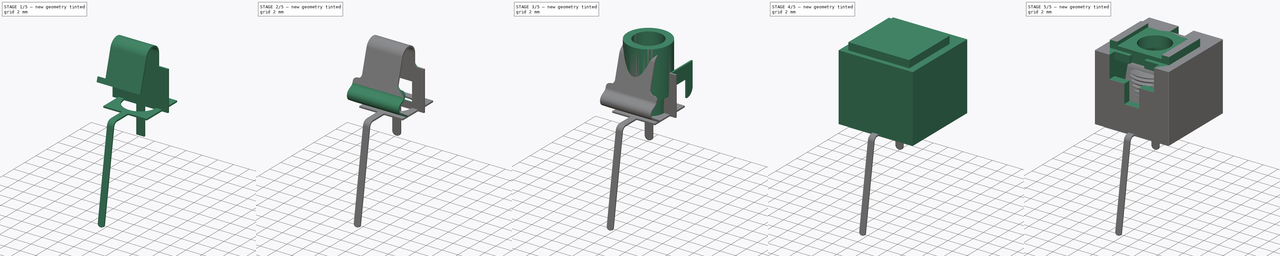
[diagram: build sequence overview — one tinted view per stage of 5, left to right]
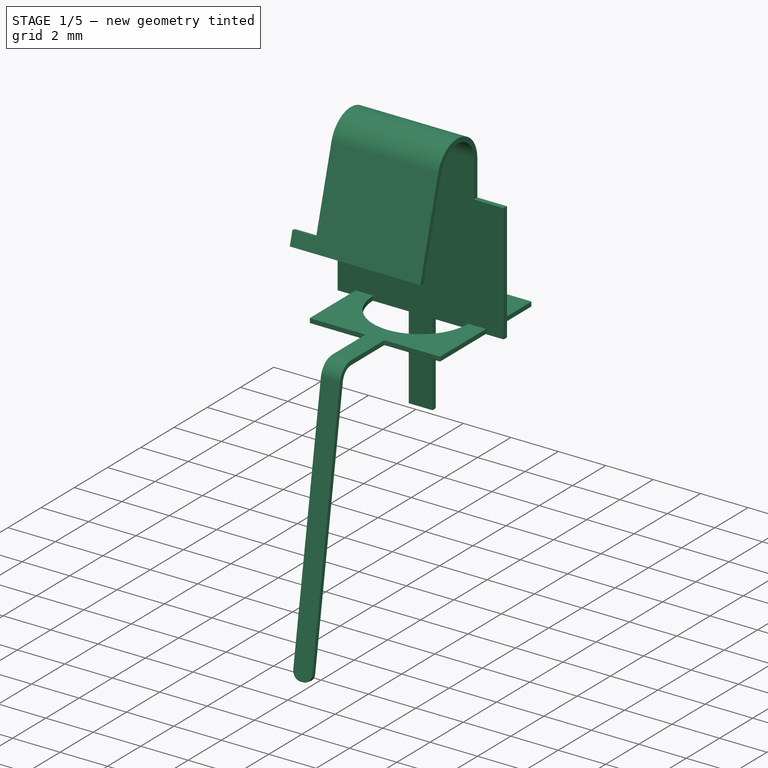
[diagram: stage 1 of 5 — iso view after this stage's code; geometry added in this stage tinted green]
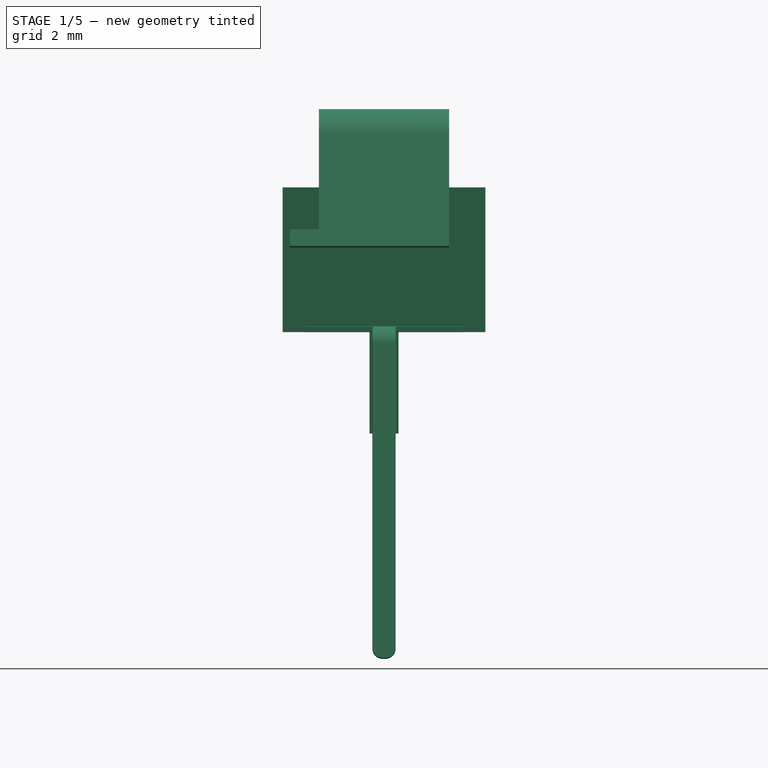
[diagram: stage 1 of 5 — front view after this stage's code; geometry added in this stage tinted green]
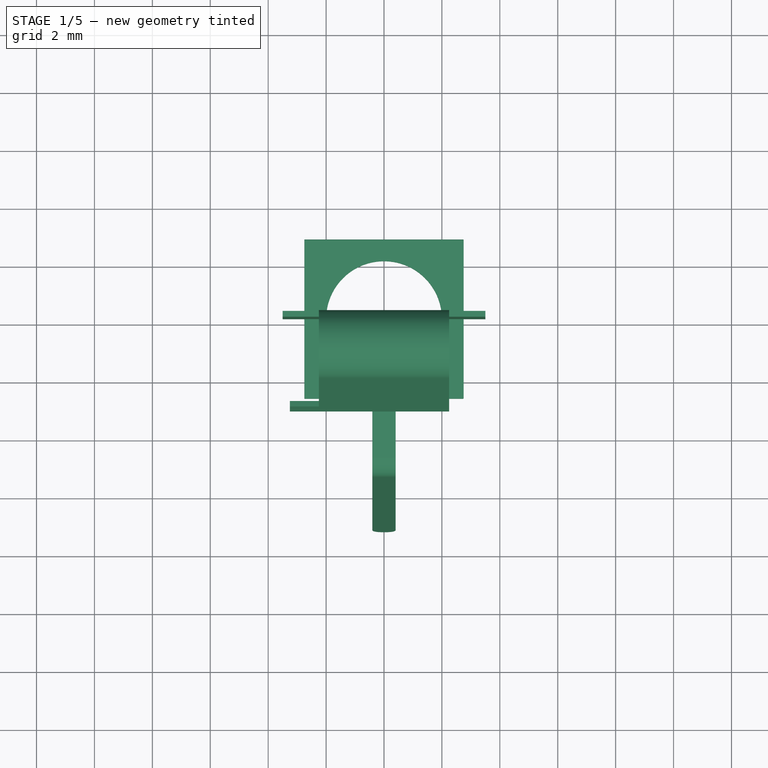
[diagram: stage 1 of 5 — top view after this stage's code; geometry added in this stage tinted green]
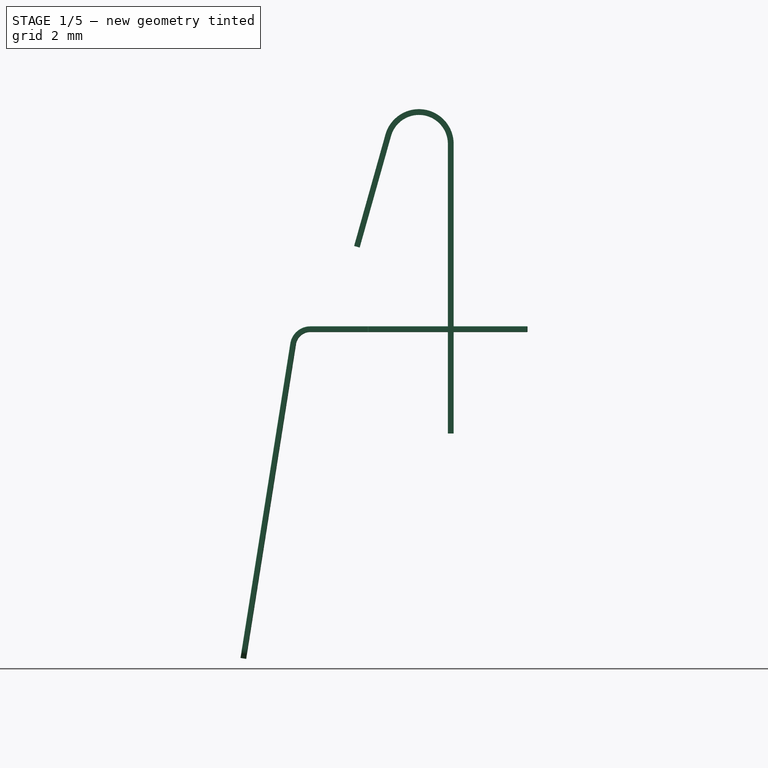
[diagram: stage 1 of 5 — right view after this stage's code; geometry added in this stage tinted green]
FCSTD DOCUMENT  (FreeCAD 0.19R24366 (Git))
Label: WPQ-P419GR
License: All rights reserved
LicenseURL: http://en.wikipedia.org/wiki/All_rights_reserved
objects: Sketcher::SketchObject×19, PartDesign::Pocket×8, PartDesign::Fillet×7, PartDesign::FeaturePython×7, Part::FeaturePython×6, PartDesign::Chamfer×6, PartDesign::Body×5, PartDesign::Pad×3, Image::ImagePlane×2, PartDesign::FeatureBase×1, PartDesign::Revolution×1, Spreadsheet::Sheet×1, PartDesign::AdditiveHelix×1, PartDesign::Groove×1, App::Part×1
note: 92 computed .brp shape members not serialized (recipe doc carries the construction recipe); baked Part::Feature solids carry a one-line shape summary decoded from their .brp

FEATURE [Sketcher::SketchObject] Sketch008
  FullyConstrained = true
  Placement = pos=(0,0,0) rot=(1,0,0;1.5708rad)
  sketch-geometry (12):
    g0: LineSegment StartX=-2.25 StartY=6.5 StartZ=0 EndX=-2.25 EndY=5 EndZ=0
    g1: LineSegment StartX=-2.25 StartY=5 StartZ=0 EndX=-3.5 EndY=5 EndZ=0
    g2: LineSegment StartX=-3.5 StartY=5 StartZ=0 EndX=-3.5 EndY=0 EndZ=0
    g3: LineSegment StartX=-3.5 StartY=0 StartZ=0 EndX=-0.5 EndY=0 EndZ=0
    g4: LineSegment StartX=-0.5 StartY=0 StartZ=0 EndX=-0.5 EndY=-3.5 EndZ=0
    g5: LineSegment StartX=-0.5 StartY=-3.5 StartZ=0 EndX=0.5 EndY=-3.5 EndZ=0
    g6: LineSegment StartX=0.5 StartY=-3.5 StartZ=0 EndX=0.5 EndY=0 EndZ=0
    g7: LineSegment StartX=0.5 StartY=0 StartZ=0 EndX=3.5 EndY=0 EndZ=0
    g8: LineSegment StartX=3.5 StartY=0 StartZ=0 EndX=3.5 EndY=5 EndZ=0
    g9: LineSegment StartX=3.5 StartY=5 StartZ=0 EndX=2.25 EndY=5 EndZ=0
    g10: LineSegment StartX=2.25 StartY=5 StartZ=0 EndX=2.25 EndY=6.5 EndZ=0
    g11: LineSegment StartX=-2.25 StartY=6.5 StartZ=0 EndX=2.25 EndY=6.5 EndZ=0
  constraints (35):
    c: Vertical(g0)
    c: Coincident(g1,g0)
    c: Horizontal(g1)
    c: Coincident(g2,g1)
    c: Vertical(g2)
    c: Coincident(g3,g2)
    c: Coincident(g4,g3)
    c: Vertical(g4)
    c: Coincident(g5,g4)
    c: Horizontal(g5)
    c: Coincident(g6,g5)
    c: Coincident(g7,g6)
    c: Horizontal(g7)
    c: Coincident(g8,g7)
    c: Coincident(g9,g8)
    c: Coincident(g10,g9)
    c: Vertical(g6)
    c: Vertical(g8)
    c: Vertical(g10)
    c: Horizontal(g3)
    c: Distance(g5) = 1
    c: Equal(g6,g4)
    c: Equal(g8,g2)
    c: Equal(g10,g0)
    c: Symmetric(g6,g3,g-1)
    c: Equal(g7,g3)
    c: Horizontal(g9)
    c: Distance(g4) = 3.5
    c: Distance(g2) = 5
    c: Distance(g0,g9) = 4.5
    c: Distance(g0) = 1.5
    c: Equal(g9,g1)
    c: Coincident(g11,g0)
    c: Coincident(g11,g10)
    c: Distance(g2,g7) = 7
FEATURE [Part::FeaturePython] BaseBend  # WARN: FeaturePython — macro-defined, semantics opaque (R4)
  BendSide = 0
  BendSketch = -> Sketch008
  MidPlane = false
  Reverse = false
  length = 100
  radius = 1
  thickness = 0.2
FEATURE [Part::FeaturePython] Bend  # WARN: FeaturePython — macro-defined, semantics opaque (R4)
  AutoMiter = true
  BendType = 0
  LengthList = [4]
  ReliefFactor = 0.7
  UseReliefFactor = false
  angle = 164.3
  baseObject = -> BaseBend [Edge35]
  bendAList = [164.3]
  extend1 = 0
  extend2 = 0
  gap1 = 0
  gap2 = 0
  invert = true
  kfactor = 0.5
  length = 4
  maxExtendDist = 5
  minGap = 0.1
  minReliefGap = 1
  miterangle1 = 0
  miterangle2 = 0
  offset = 0
  radius = 1
  reliefType = 0
  reliefd = 1
  reliefw = 0.8
  sketchflip = false
  sketchinvert = false
  unfold = false
  expr: length = 7mm - 3mm
FEATURE [Part::FeaturePython] Extend  # WARN: FeaturePython — macro-defined, semantics opaque (R4)
  Offset = 20
  Refine = true
  UseSubstraction = false
  baseObject = -> Bend [Face1]
  gap1 = 3.4
  gap2 = 0
  length = 1
FEATURE [PartDesign::Body] Body001  label="Pin 3"
  BaseFeature = -> Bend002
  Group = -> [BaseFeature,Sketch009,Pocket006,Fillet001,Fillet002,Fillet003,Chamfer005]
  Origin = -> Origin002
  Placement = pos=(0,4.8,0) rot=(0,0,1;0rad)
  Tip = -> Chamfer005
FEATURE [PartDesign::FeaturePython] BaseBend003  # WARN: FeaturePython — macro-defined, semantics opaque (R4)
  BendSide = 0
  BendSketch = -> Sketch011
  MidPlane = false
  Reverse = false
  length = 100
  radius = 1
  thickness = 0.2
FEATURE [PartDesign::FeaturePython] Extend004  # WARN: FeaturePython — macro-defined, semantics opaque (R4)
  BaseFeature = -> BaseBend003
  Offset = 0.02
  Refine = true
  UseSubstraction = false
  baseObject = -> BaseBend003 [Edge9]
  gap1 = 2.35
  gap2 = 2.35
  length = 2
FEATURE [PartDesign::FeaturePython] Bend006  # WARN: FeaturePython — macro-defined, semantics opaque (R4)
  AutoMiter = true
  BaseFeature = -> Extend004
  BendType = 0
  LengthList = [11]
  ReliefFactor = 0.7
  UseReliefFactor = false
  angle = 81
  baseObject = -> Extend004 [Edge24]
  bendAList = [81]
  extend1 = 0
  extend2 = 0
  gap1 = 0
  gap2 = 0
  invert = false
  kfactor = 0.5
  length = 11
  maxExtendDist = 5
  minGap = 0.1
  minReliefGap = 1
  miterangle1 = 0
  miterangle2 = 0
  offset = 0
  radius = 0.5
  reliefType = 0
  reliefd = 1
  reliefw = 0.8
  sketchflip = false
  sketchinvert = false
  unfold = false
FEATURE [Sketcher::SketchObject] Sketch020  label="PCB Footprint Bottom"
  AttachmentOffset = pos=(0,0,-1.6) rot=(0,0,1;0rad)
  FullyConstrained = true
  MapMode = 5
  Placement = pos=(0,0,-1.6) rot=(0,0,1;0rad)
  Support = -> [XY_Plane001]
  sketch-geometry (4):
    g0: Circle CenterX=0 CenterY=0 CenterZ=0 NormalX=0 NormalY=0 NormalZ=1 AngleXU=0 Radius=1.8
    g1: Circle CenterX=0 CenterY=4.92 CenterZ=0 NormalX=0 NormalY=0 NormalZ=1 AngleXU=0 Radius=0.75
    g2: Circle CenterX=0 CenterY=-3.38 CenterZ=0 NormalX=0 NormalY=0 NormalZ=1 AngleXU=0 Radius=0.75
    g3: Circle CenterX=0 CenterY=-6.48 CenterZ=0 NormalX=0 NormalY=0 NormalZ=1 AngleXU=0 Radius=0.75
  constraints (11):
    c: Coincident(g0,g-1)
    c: Diameter(g0) = 3.6
    c: PointOnObject(g1,g-2)
    c: PointOnObject(g2,g-2)
    c: PointOnObject(g3,g-2)
    c: Diameter(g1) = 1.5
    c: Diameter(g2) = 1.5
    c: Diameter(g3) = 1.5
    c: DistanceY(g3,g2) = 3.1
    c: DistanceY(g2,g0) = 3.38
    c: DistanceY(g0,g1) = 4.92
FEATURE [PartDesign::Body] Body
  Group = -> [Sketch,Pad,Sketch001,Pad001,Sketch002,Pocket,Sketch003,Pocket001,Sketch004,Pocket002,Sketch005,Pocket003,Sketch006,Pocket004,Sketch007,Pocket005,Fillet,Chamfer001,Sketch014,Sketch020]
  Origin = -> Origin001
  Tip = -> Chamfer001
FEATURE [PartDesign::Fillet] Fillet007
  Base = -> Bend006 [Edge2,Edge8]
  BaseFeature = -> Bend006
  Radius = 0.35
  SupportTransform = false
FEATURE [PartDesign::Chamfer] Chamfer006
  Angle = 45
  Base = -> Fillet007 [Edge1,Edge4,Edge8,Edge9,Edge5,Edge18,Edge16,Edge7,Edge11,Edge13,Edge12,Edge19,Edge41,Edge32,Edge28,Edge27,Edge39,Edge34,Edge26,Edge35,Edge44,Edge38,Edge47,Edge37,Edge42,Edge43,Edge36,Edge48,Edge17,Edge24,Edge40,Edge33,Edge45,Edge31,Edge46,Edge30]
  BaseFeature = -> Fillet007
  ChamferType = 0
  FlipDirection = false
  Size = 0.01
  Size2 = 1
  SupportTransform = false
FEATURE [PartDesign::Body] Body003  label="Pin 1"
  Group = -> [Sketch011,BaseBend003,Extend004,Bend006,Fillet007,Chamfer006]
  Origin = -> Origin004
  Placement = pos=(0,0,7.8) rot=(0,0,1;0rad)
  Tip = -> Chamfer006
FEATURE [App::Part] Part
  Group = -> [Body,Body001,Body002,Body003,Body004]
  Origin = -> Origin
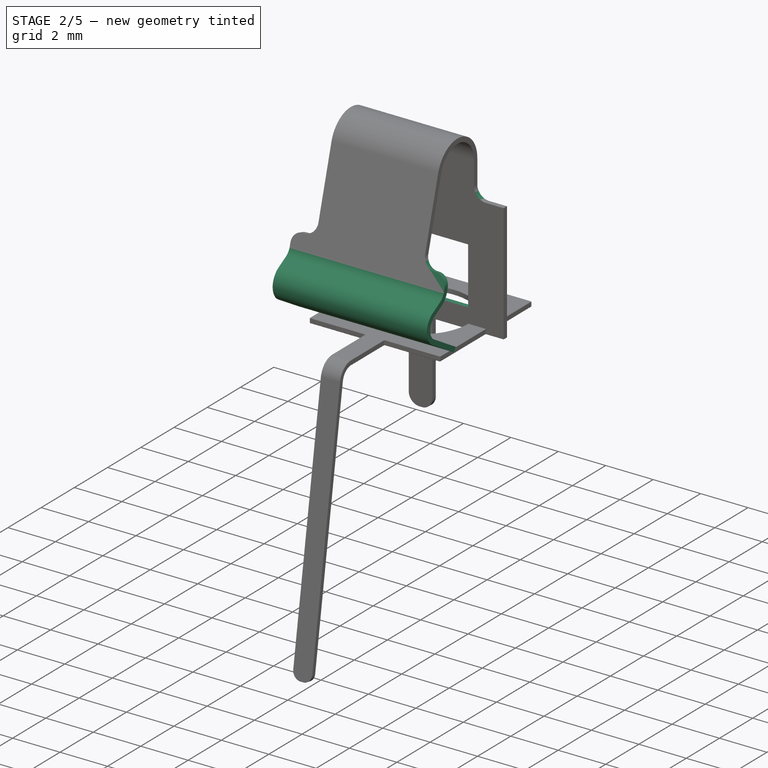
[diagram: stage 2 of 5 — iso view after this stage's code; geometry added in this stage tinted green]
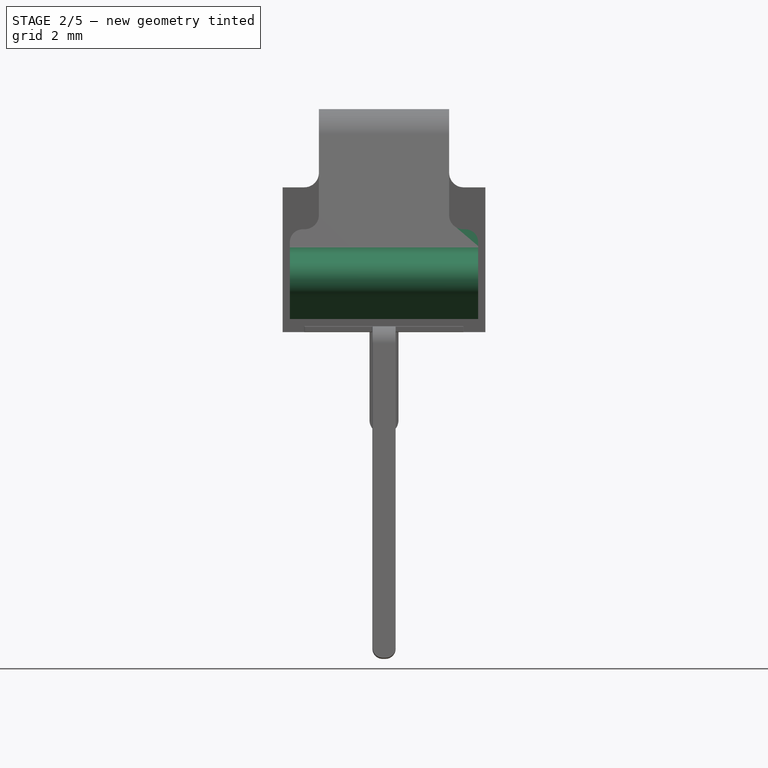
[diagram: stage 2 of 5 — front view after this stage's code; geometry added in this stage tinted green]
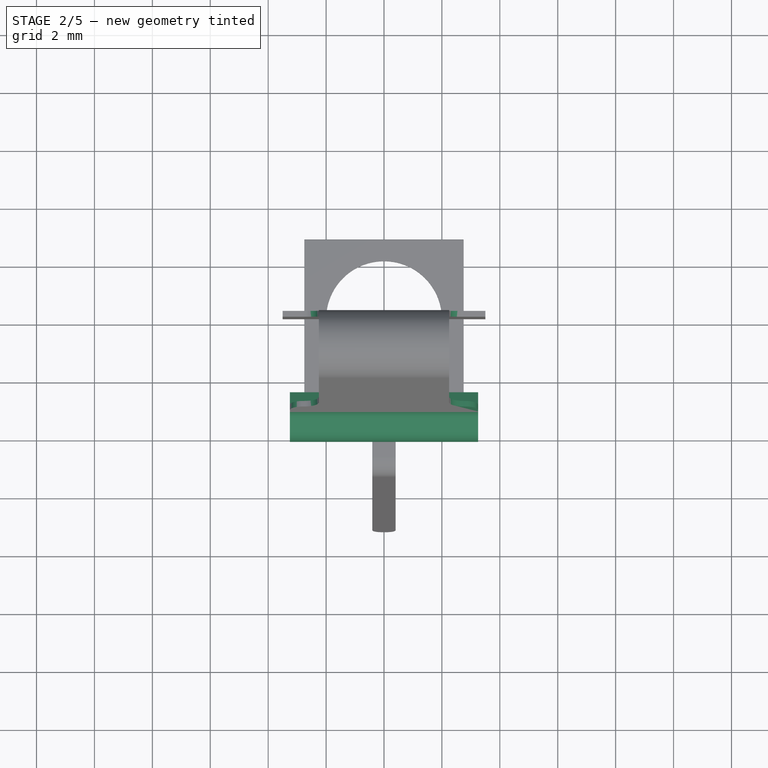
[diagram: stage 2 of 5 — top view after this stage's code; geometry added in this stage tinted green]
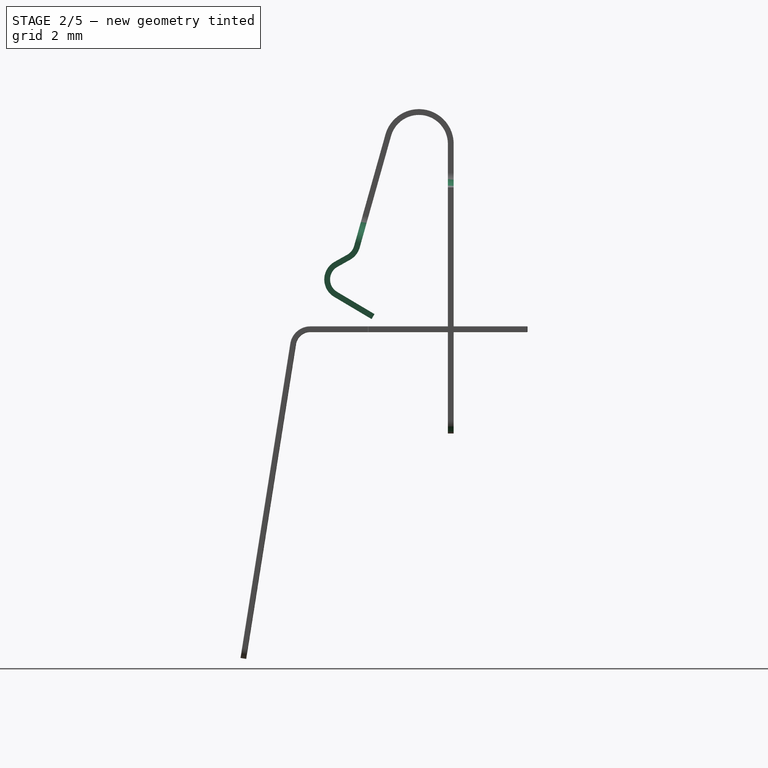
[diagram: stage 2 of 5 — right view after this stage's code; geometry added in this stage tinted green]
FEATURE [Part::FeaturePython] Extend001  # WARN: FeaturePython — macro-defined, semantics opaque (R4)
  Offset = 0.02
  Refine = true
  UseSubstraction = false
  baseObject = -> Extend [Face14]
  gap1 = 0
  gap2 = 3.4
  length = 1
FEATURE [Part::FeaturePython] Bend001  # WARN: FeaturePython — macro-defined, semantics opaque (R4)
  AutoMiter = true
  BendType = 0
  LengthList = [0.5]
  ReliefFactor = 0.7
  UseReliefFactor = false
  angle = 45
  baseObject = -> Extend001 [Edge32]
  bendAList = [45]
  extend1 = 0
  extend2 = 0
  gap1 = 0
  gap2 = 0
  invert = false
  kfactor = 0.5
  length = 0.5
  maxExtendDist = 5
  minGap = 0.1
  minReliefGap = 1
  miterangle1 = 0
  miterangle2 = 0
  offset = 0
  radius = 0.5
  reliefType = 0
  reliefd = 1
  reliefw = 0.8
  sketchflip = false
  sketchinvert = false
  unfold = false
FEATURE [Part::FeaturePython] Bend002  # WARN: FeaturePython — macro-defined, semantics opaque (R4)
  AutoMiter = true
  BendType = 0
  LengthList = [1.5]
  ReliefFactor = 0.7
  UseReliefFactor = false
  angle = 120
  baseObject = -> Bend001 [Edge9]
  bendAList = [120]
  extend1 = 0
  extend2 = 0
  gap1 = 0
  gap2 = 0
  invert = true
  kfactor = 0.5
  length = 1.5
  maxExtendDist = 5
  minGap = 0.1
  minReliefGap = 1
  miterangle1 = 0
  miterangle2 = 0
  offset = 0
  radius = 0.5
  reliefType = 0
  reliefd = 1
  reliefw = 0.8
  sketchflip = false
  sketchinvert = false
  unfold = false
FEATURE [PartDesign::FeatureBase] BaseFeature
  BaseFeature = -> Bend002
FEATURE [Sketcher::SketchObject] Sketch009
  FullyConstrained = true
  MapMode = 5
  Placement = pos=(0,0,0) rot=(1,0,0;1.5708rad)
  sketch-geometry (5):
    g0: LineSegment StartX=-2 StartY=3.22 StartZ=0 EndX=2 EndY=3.22 EndZ=0
    g1: LineSegment StartX=2 StartY=3.22 StartZ=0 EndX=2 EndY=0.82 EndZ=0
    g2: LineSegment StartX=2 StartY=0.82 StartZ=0 EndX=-2 EndY=0.82 EndZ=0
    g3: LineSegment StartX=-2 StartY=0.82 StartZ=0 EndX=-2 EndY=3.22 EndZ=0
    g4: GeomPoint X=0 Y=3.22 Z=0
  constraints (13):
    c: Coincident(g0,g1)
    c: Coincident(g1,g2)
    c: Coincident(g2,g3)
    c: Coincident(g3,g0)
    c: Horizontal(g0)
    c: Horizontal(g2)
    c: Vertical(g1)
    c: Vertical(g3)
    c: DistanceY(g1,g1) = 2.4
    c: DistanceX(g0,g0) = 4
    c: Vertical(g4,g-1)
    c: Symmetric(g0,g0,g4)
    c: Distance(g-1,g2) = 0.82
FEATURE [PartDesign::Pocket] Pocket006
  BaseFeature = -> BaseFeature
  Length = 0
  Length2 = 100
  Profile = -> Sketch009
  Type = 3
  UpToFace = -> BaseFeature [Face31]
FEATURE [PartDesign::Fillet] Fillet001
  Base = -> Pocket006 [Edge95,Edge58,Edge96,Edge52]
  BaseFeature = -> Pocket006
  Radius = 0.5
  SupportTransform = false
FEATURE [PartDesign::Fillet] Fillet002
  Base = -> Fillet001 [Edge83,Edge87]
  BaseFeature = -> Fillet001
  Radius = 0.45
  SupportTransform = false
FEATURE [PartDesign::Fillet] Fillet003
  Base = -> Fillet002 [Edge93,Edge84]
  BaseFeature = -> Fillet002
  Radius = 0.45
  SupportTransform = false
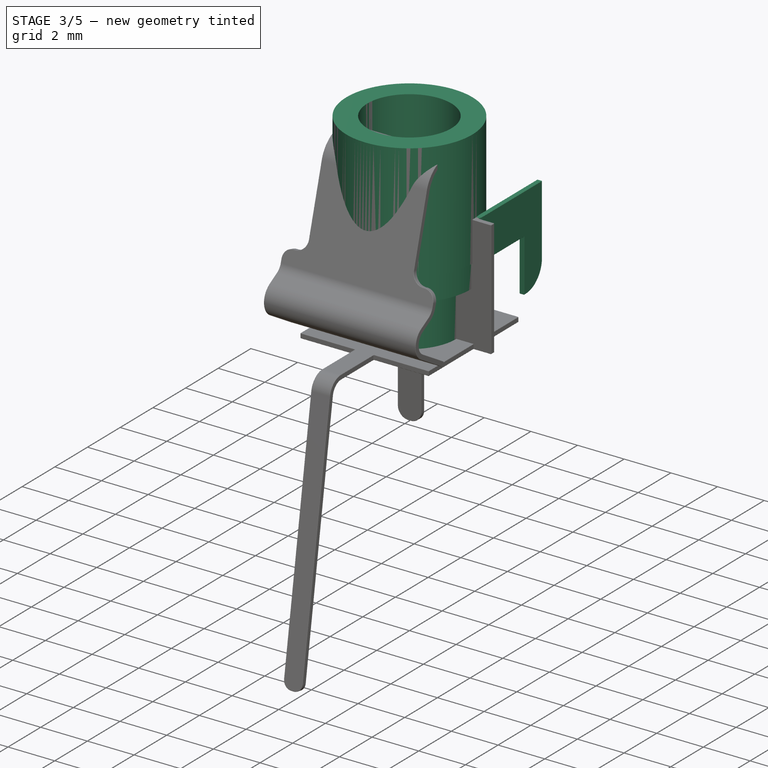
[diagram: stage 3 of 5 — iso view after this stage's code; geometry added in this stage tinted green]
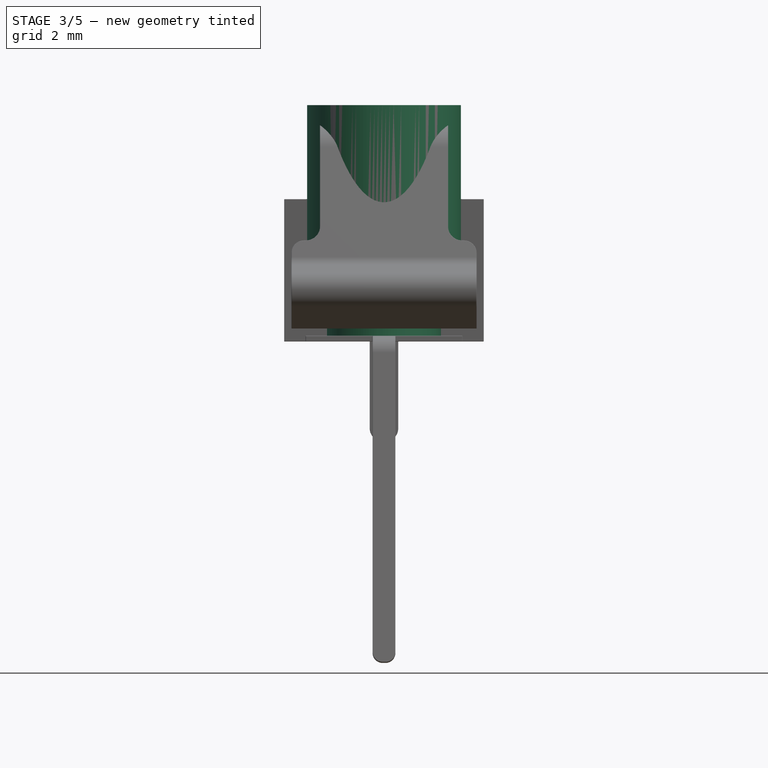
[diagram: stage 3 of 5 — front view after this stage's code; geometry added in this stage tinted green]
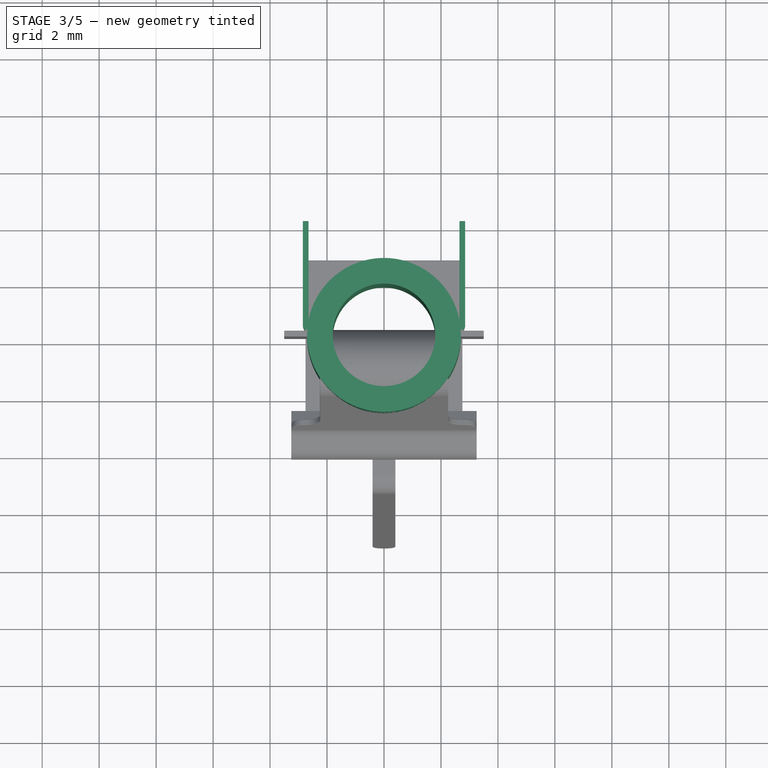
[diagram: stage 3 of 5 — top view after this stage's code; geometry added in this stage tinted green]
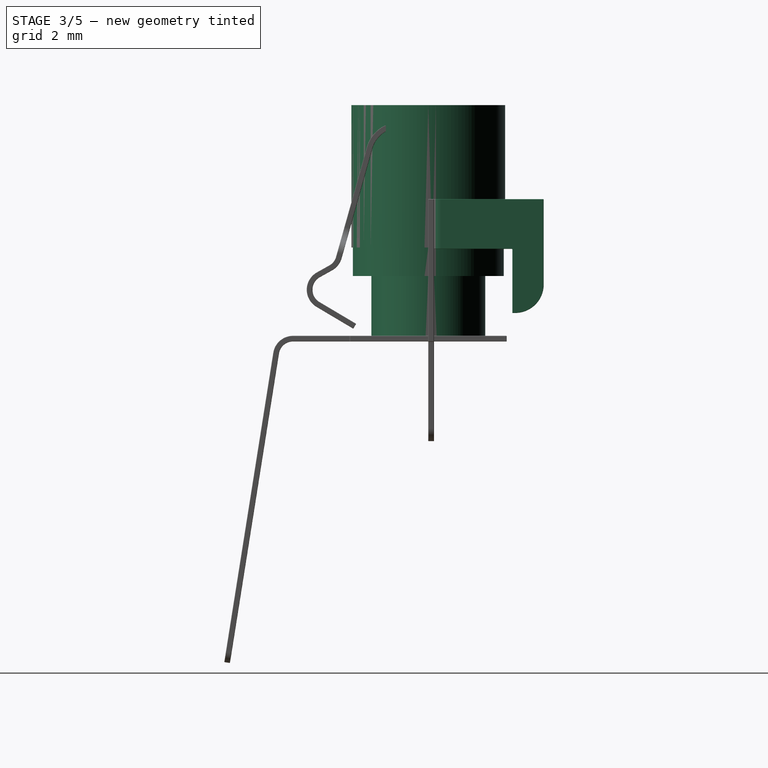
[diagram: stage 3 of 5 — right view after this stage's code; geometry added in this stage tinted green]
FEATURE [Sketcher::SketchObject] Sketch010
  FullyConstrained = true
  MapMode = 5
  Placement = pos=(0,0,0) rot=(1,0,0;1.5708rad)
  Support = -> [XZ_Plane003]
  sketch-geometry (18):
    g0: LineSegment StartX=-1.4 StartY=3.4 StartZ=0 EndX=1.4 EndY=3.4 EndZ=0
    g1: LineSegment StartX=1.4 StartY=3.4 StartZ=0 EndX=1.4 EndY=0.9 EndZ=0
    g2: LineSegment StartX=1.4 StartY=0.9 StartZ=0 EndX=-1.4 EndY=0.9 EndZ=0
    g3: LineSegment StartX=-1.4 StartY=0.9 StartZ=0 EndX=-1.4 EndY=3.4 EndZ=0
    g4: GeomPoint X=0 Y=0.9 Z=0
    g5: LineSegment StartX=-3.5 StartY=0 StartZ=0 EndX=-0.5 EndY=0 EndZ=0
    g6: LineSegment StartX=-0.5 StartY=0 StartZ=0 EndX=-0.5 EndY=-3.5 EndZ=0
    g7: LineSegment StartX=-0.5 StartY=-3.5 StartZ=0 EndX=0.5 EndY=-3.5 EndZ=0
    g8: LineSegment StartX=0.5 StartY=-3.5 StartZ=0 EndX=0.5 EndY=0 EndZ=0
    g9: LineSegment StartX=0.5 StartY=0 StartZ=0 EndX=3.5 EndY=0 EndZ=0
    g10: LineSegment StartX=3.5 StartY=0 StartZ=0 EndX=3.5 EndY=2.5 EndZ=0
    g11: LineSegment StartX=-3.5 StartY=0 StartZ=0 EndX=-3.5 EndY=2.5 EndZ=0
    g12: LineSegment StartX=3.5 StartY=2.5 StartZ=0 EndX=2.4 EndY=2.5 EndZ=0
    g13: LineSegment StartX=-3.5 StartY=2.5 StartZ=0 EndX=-2.4 EndY=2.5 EndZ=0
    g14: LineSegment StartX=2.4 StartY=2.5 StartZ=0 EndX=2.4 EndY=5 EndZ=0
    g15: LineSegment StartX=-2.4 StartY=2.5 StartZ=0 EndX=-2.4 EndY=5 EndZ=0
    g16: GeomPoint X=0 Y=5 Z=0
    g17: LineSegment StartX=-2.4 StartY=5 StartZ=0 EndX=2.4 EndY=5 EndZ=0
  constraints (48):
    c: Symmetric(g5,g9,g-1)
    c: Coincident(g0,g1)
    c: Coincident(g1,g2)
    c: Coincident(g2,g3)
    c: Coincident(g3,g0)
    c: Horizontal(g0)
    c: Horizontal(g2)
    c: Vertical(g1)
    c: Vertical(g3)
    c: DistanceX(g0,g0) = 2.8
    c: DistanceY(g1,g1) = 2.5
    c: PointOnObject(g4,g-2)
    c: Distance(g4,g-1) = 0.9
    c: Symmetric(g1,g2,g4)
    c: PointOnObject(g5,g-1)
    c: Horizontal(g5)
    c: Coincident(g6,g5)
    c: Vertical(g6)
    c: Coincident(g7,g6)
    c: Horizontal(g7)
    c: Coincident(g8,g7)
    c: Vertical(g8)
    c: Coincident(g9,g8)
    c: DistanceX(g7,g7) = 1
    c: DistanceY(g6,g6) = 3.5
    c: Symmetric(g5,g8,g-1)
    c: Coincident(g10,g9)
    c: Vertical(g10)
    c: Coincident(g11,g5)
    c: Vertical(g11)
    c: Equal(g11,g10)
    c: DistanceY(g10,g10) = 2.5
    c: Coincident(g12,g10)
    c: Horizontal(g12)
    c: Coincident(g13,g11)
    c: Horizontal(g13)
    c: Distance(g5,g9) = 7
    c: Equal(g13,g12)
    c: Coincident(g14,g12)
    c: Vertical(g14)
    c: Coincident(g15,g13)
    c: Vertical(g15)
    c: DistanceY(g-1,g16) = 5
    c: Coincident(g17,g15)
    c: Coincident(g17,g14)
    c: DistanceX(g17,g17) = 4.8
    c: Symmetric(g15,g14,g16)
    c: Horizontal(g17)
FEATURE [PartDesign::FeaturePython] BaseBend001  # WARN: FeaturePython — macro-defined, semantics opaque (R4)
  BendSide = 0
  BendSketch = -> Sketch010
  MidPlane = false
  Reverse = false
  length = 100
  radius = 1
  thickness = 0.2
FEATURE [PartDesign::FeaturePython] Bend003  # WARN: FeaturePython — macro-defined, semantics opaque (R4)
  AutoMiter = true
  BaseFeature = -> BaseBend001
  BendType = 0
  LengthList = [3.6]
  ReliefFactor = 0.7
  UseReliefFactor = false
  angle = 90
  baseObject = -> BaseBend001 [Edge25]
  bendAList = [90]
  extend1 = 0
  extend2 = 0
  gap1 = 0.75
  gap2 = 0
  invert = true
  kfactor = 0.5
  length = 3.6
  maxExtendDist = 5
  minGap = 0.1
  minReliefGap = 1
  miterangle1 = 0
  miterangle2 = 0
  offset = 0
  radius = 0.25
  reliefType = 0
  reliefd = 1
  reliefw = 0.8
  sketchflip = false
  sketchinvert = false
  unfold = false
FEATURE [PartDesign::FeaturePython] Bend004  # WARN: FeaturePython — macro-defined, semantics opaque (R4)
  AutoMiter = true
  BaseFeature = -> Bend003
  BendType = 0
  LengthList = [3.6]
  ReliefFactor = 0.7
  UseReliefFactor = false
  angle = 90
  baseObject = -> Bend003 [Edge32]
  bendAList = [90]
  extend1 = 0
  extend2 = 0
  gap1 = 0.75
  gap2 = 0
  invert = true
  kfactor = 0.5
  length = 3.6
  maxExtendDist = 5
  minGap = 0.1
  minReliefGap = 1
  miterangle1 = 0
  miterangle2 = 0
  offset = 0
  radius = 0.25
  reliefType = 0
  reliefd = 1
  reliefw = 0.8
  sketchflip = false
  sketchinvert = false
  unfold = false
FEATURE [PartDesign::FeaturePython] Extend002  # WARN: FeaturePython — macro-defined, semantics opaque (R4)
  BaseFeature = -> Bend004
  Offset = 0.02
  Refine = true
  UseSubstraction = false
  baseObject = -> Bend004 [Face1,Face35]
  gap1 = 2.5
  gap2 = 0
  length = 2.25
FEATURE [PartDesign::Fillet] Fillet004
  Base = -> Extend002 [Edge65,Edge66]
  BaseFeature = -> Extend002
  Radius = 0.45
  SupportTransform = false
FEATURE [PartDesign::Fillet] Fillet005
  Base = -> Fillet004 [Edge93,Edge101]
  BaseFeature = -> Fillet004
  Radius = 1
  SupportTransform = false
FEATURE [Sketcher::SketchObject] Sketch011
  FullyConstrained = true
  MapMode = 5
  Support = -> [XY_Plane004]
  sketch-geometry (5):
    g0: LineSegment StartX=-2.75 StartY=2.75 StartZ=0 EndX=2.75 EndY=2.75 EndZ=0
    g1: LineSegment StartX=2.75 StartY=2.75 StartZ=0 EndX=2.75 EndY=-2.75 EndZ=0
    g2: LineSegment StartX=2.75 StartY=-2.75 StartZ=0 EndX=-2.75 EndY=-2.75 EndZ=0
    g3: LineSegment StartX=-2.75 StartY=-2.75 StartZ=0 EndX=-2.75 EndY=2.75 EndZ=0
    g4: Circle CenterX=0 CenterY=0 CenterZ=0 NormalX=0 NormalY=0 NormalZ=1 AngleXU=0 Radius=2
  constraints (13):
    c: Coincident(g0,g1)
    c: Coincident(g1,g2)
    c: Coincident(g2,g3)
    c: Coincident(g3,g0)
    c: Horizontal(g0)
    c: Horizontal(g2)
    c: Vertical(g1)
    c: Vertical(g3)
    c: Coincident(g4,g-1)
    c: DistanceX(g0,g0) = 5.5
    c: DistanceY(g3,g3) = 5.5
    c: Symmetric(g0,g2,g4)
    c: Diameter(g4) = 4
FEATURE [Sketcher::SketchObject] Sketch012
  FullyConstrained = true
  MapMode = 5
  Placement = pos=(0,0,0) rot=(1,0,0;1.5708rad)
  Support = -> [XZ_Plane005]
  sketch-geometry (10):
    g0: LineSegment StartX=2.7 StartY=8.3 StartZ=0 EndX=2.7 EndY=3.3 EndZ=0
    g1: LineSegment StartX=2.7 StartY=3.3 StartZ=0 EndX=2.65 EndY=3.3 EndZ=0
    g2: LineSegment StartX=2.65 StartY=3.3 StartZ=0 EndX=2.65 EndY=2.3 EndZ=0
    g3: LineSegment StartX=2.65 StartY=2.3 StartZ=0 EndX=2 EndY=2.3 EndZ=0
    g4: LineSegment StartX=2 StartY=2.3 StartZ=0 EndX=2 EndY=0.1 EndZ=0
    g5: LineSegment StartX=2 StartY=0.1 StartZ=0 EndX=2.2 EndY=0 EndZ=0
    g6: LineSegment StartX=2.2 StartY=0 StartZ=0 EndX=1.8 EndY=0 EndZ=0
    g7: GeomPoint X=0 Y=8.3 Z=0
    g8: LineSegment StartX=1.8 StartY=8.3 StartZ=0 EndX=1.8 EndY=0 EndZ=0
    g9: LineSegment StartX=2.7 StartY=8.3 StartZ=0 EndX=1.8 EndY=8.3 EndZ=0
  constraints (29):
    c: Vertical(g0)
    c: Coincident(g1,g0)
    c: Coincident(g2,g1)
    c: Vertical(g2)
    c: Coincident(g3,g2)
    c: Coincident(g4,g3)
    c: Vertical(g4)
    c: Coincident(g5,g4)
    c: Horizontal(g1)
    c: Horizontal(g3)
    c: DistanceY(g0,g0) = 5
    c: DistanceY(g2,g2) = 1
    c: DistanceY(g4,g4) = 2.2
    c: DistanceY(g5,g4) = 0.1
    c: Coincident(g6,g5)
    c: Horizontal(g6)
    c: PointOnObject(g7,g-2)
    c: Horizontal(g7,g0)
    c: DistanceX(g-1,g5) = 2.2
    c: DistanceX(g7,g0) = 2.7
    c: Coincident(g8,g6)
    c: Horizontal(g6,g-1)
    c: DistanceX(g-1,g3) = 2
    c: DistanceX(g-1,g1) = 2.65
    c: Coincident(g9,g0)
    c: Horizontal(g9)
    c: DistanceX(g7,g8) = 1.8
    c: Coincident(g8,g9)
    c: Vertical(g8)
FEATURE [PartDesign::Revolution] Revolution
  Angle = 360
  Axis = (0,-2e-16,1)
  Base = (0,0,0)
  Placement = pos=(0,0,0) rot=(1,0,0;1.5708rad)
  Profile = -> Sketch012
  ReferenceAxis = -> Sketch012 [V_Axis]
  Reversed = true
FEATURE [PartDesign::Body] Body004  label="Socket"
  Group = -> [Sketch012,Revolution,Sketch013,Pad002,Sketch015,AdditiveHelix,Sketch018,Groove,Sketch019,Pocket007,Chamfer,Chamfer002]
  Origin = -> Origin005
  Placement = pos=(0,0,7.7) rot=(0,0,1;0rad)
  Tip = -> Chamfer002
FEATURE [PartDesign::Chamfer] Chamfer004
  Angle = 45
  Base = -> Fillet005 [Edge29,Edge30,Edge32,Edge34,Edge36,Edge67,Edge64,Edge60,Edge56,Edge53,Edge55,Edge68,Edge38,Edge70,Edge31,Edge59,Edge58,Edge33,Edge69,Edge39,Edge72,Edge63,Edge46,Edge47,Edge45,Edge84,Edge81,Edge44,Edge82,Edge80,Edge87,Edge83,Edge86,Edge85,Edge12,Edge2,Edge10,Edge14,Edge9,Edge1,+31 more]
  BaseFeature = -> Fillet005
  ChamferType = 0
  FlipDirection = false
  Size = 0.01
  Size2 = 1
  SupportTransform = false
FEATURE [PartDesign::Body] Body002  label="Pin 2"
  Group = -> [Sketch010,BaseBend001,Bend003,Bend004,Extend002,Fillet004,Fillet005,Chamfer004]
  Origin = -> Origin003
  Placement = pos=(0,-3.5,0) rot=(0,0,1;0rad)
  Tip = -> Chamfer004
FEATURE [PartDesign::Chamfer] Chamfer005
  Angle = 45
  Base = -> Fillet003 [Edge61,Edge102,Edge59,Edge98,Edge105,Edge63,Edge101,Edge113,Edge118,Edge112,Edge69,Edge72,Edge92,Edge56,Edge88,Edge90,Edge55,Edge57,Edge94,Edge117,Edge115,Edge91,Edge96,Edge107,Edge104,Edge65,Edge9,Edge11,Edge10,Edge12,Edge8,Edge25,Edge49,Edge125,Edge132,Edge130,Edge131,Edge122,Edge120,Edge129,+50 more]
  BaseFeature = -> Fillet003
  ChamferType = 0
  FlipDirection = false
  Size = 0.01
  Size2 = 1
  SupportTransform = false
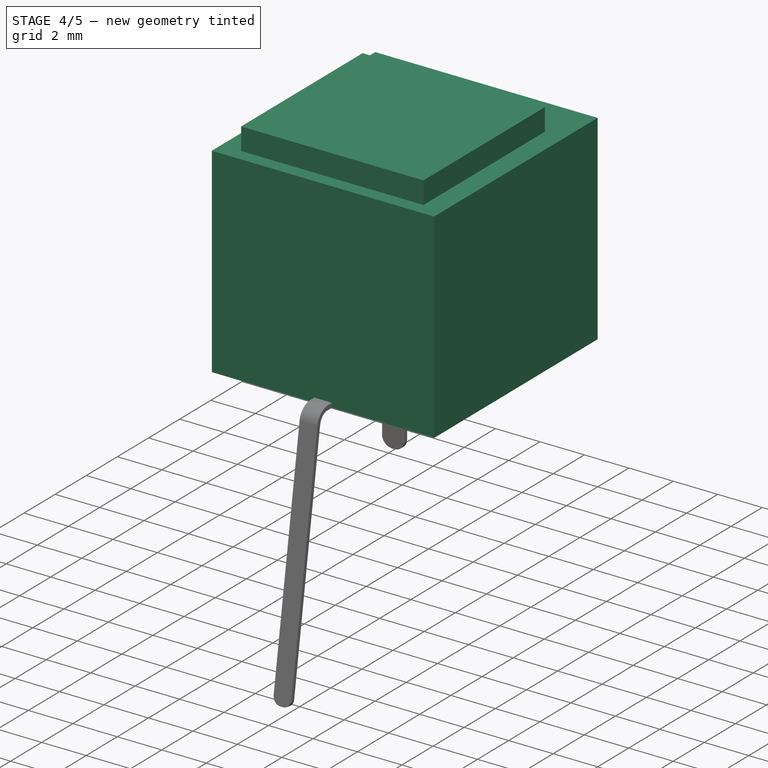
[diagram: stage 4 of 5 — iso view after this stage's code; geometry added in this stage tinted green]
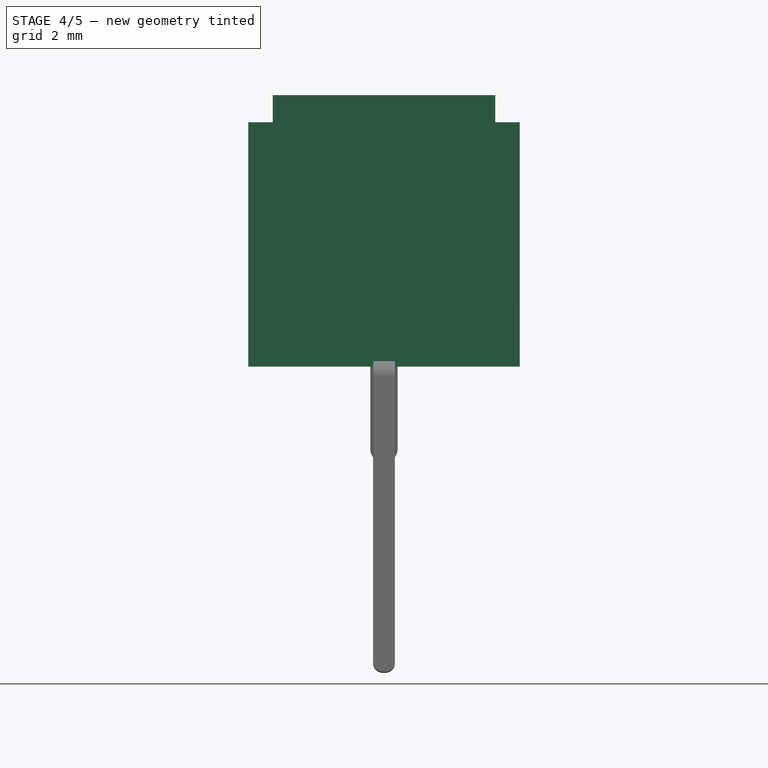
[diagram: stage 4 of 5 — front view after this stage's code; geometry added in this stage tinted green]
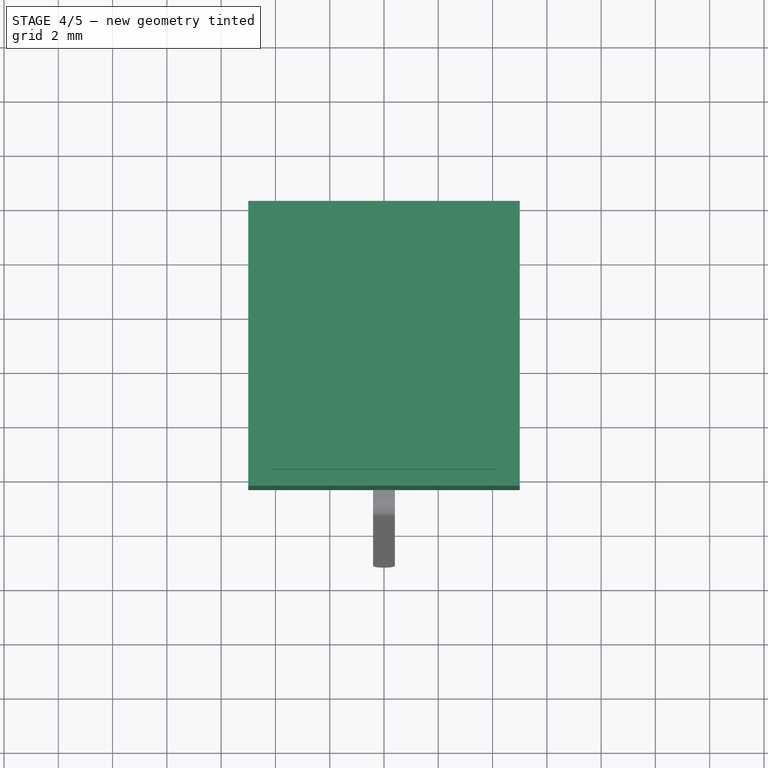
[diagram: stage 4 of 5 — top view after this stage's code; geometry added in this stage tinted green]
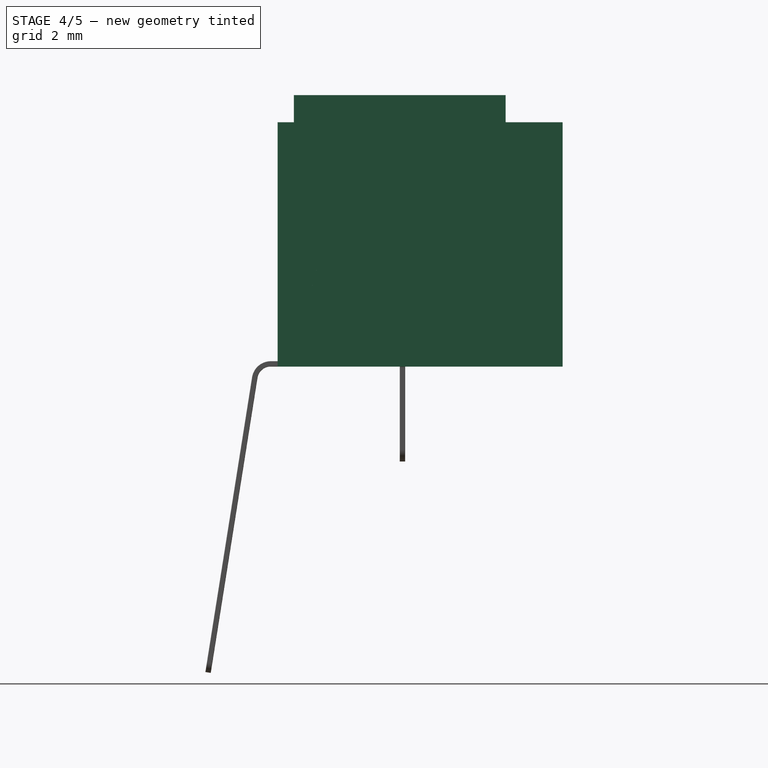
[diagram: stage 4 of 5 — right view after this stage's code; geometry added in this stage tinted green]
FEATURE [Sketcher::SketchObject] Sketch
  FullyConstrained = true
  MapMode = 5
  Support = -> [XY_Plane001]
  expr: Constraints[11] = 1.5mm / 2
  sketch-geometry (5):
    g0: LineSegment StartX=-5 StartY=6 StartZ=0 EndX=5 EndY=6 EndZ=0
    g1: LineSegment StartX=5 StartY=6 StartZ=0 EndX=5 EndY=-4.5 EndZ=0
    g2: LineSegment StartX=5 StartY=-4.5 StartZ=0 EndX=-5 EndY=-4.5 EndZ=0
    g3: LineSegment StartX=-5 StartY=-4.5 StartZ=0 EndX=-5 EndY=6 EndZ=0
    g4: GeomPoint X=0 Y=0.75 Z=0
  constraints (13):
    c: Coincident(g0,g1)
    c: Coincident(g1,g2)
    c: Coincident(g2,g3)
    c: Coincident(g3,g0)
    c: Horizontal(g0)
    c: Horizontal(g2)
    c: Vertical(g1)
    c: Vertical(g3)
    c: Distance(g0) = 10
    c: Distance(g1) = 10.5
    c: Vertical(g4,g-1)
    c: Distance(g4,g-1) = 0.75
    c: Symmetric(g0,g2,g4)
FEATURE [Image::ImagePlane] ImagePlane
  XSize = 111
  YSize = 108
FEATURE [Image::ImagePlane] ImagePlane001
  Placement = pos=(0,0,0) rot=(0.57735,0.57735,0.57735;2.0944rad)
  XSize = 153
  YSize = 102
FEATURE [PartDesign::Pad] Pad
  Direction = (1,1,1)
  Length = 9
  Length2 = 100
  Profile = -> Sketch
  Type = 0
FEATURE [Sketcher::SketchObject] Sketch001
  FullyConstrained = true
  MapMode = 5
  Placement = pos=(0,0,9) rot=(0,0,1;0rad)
  Support = -> [Pad]
  sketch-geometry (4):
    g0: LineSegment StartX=-4.1 StartY=3.9 StartZ=0 EndX=4.1 EndY=3.9 EndZ=0
    g1: LineSegment StartX=4.1 StartY=3.9 StartZ=0 EndX=4.1 EndY=-3.9 EndZ=0
    g2: LineSegment StartX=4.1 StartY=-3.9 StartZ=0 EndX=-4.1 EndY=-3.9 EndZ=0
    g3: LineSegment StartX=-4.1 StartY=-3.9 StartZ=0 EndX=-4.1 EndY=3.9 EndZ=0
  constraints (11):
    c: Coincident(g0,g1)
    c: Coincident(g1,g2)
    c: Coincident(g2,g3)
    c: Coincident(g3,g0)
    c: Horizontal(g0)
    c: Horizontal(g2)
    c: Vertical(g1)
    c: Vertical(g3)
    c: Symmetric(g0,g2,g-1)
    c: Distance(g0) = 8.2
    c: Distance(g1) = 7.8
FEATURE [PartDesign::Pad] Pad001
  BaseFeature = -> Pad
  Direction = (1,1,1)
  Length = 1
  Length2 = 100
  Profile = -> Sketch001
  Type = 0
FEATURE [Sketcher::SketchObject] Sketch013
  AttachmentOffset = pos=(0,0,1.8) rot=(0,0,1;0rad)
  FullyConstrained = true
  MapMode = 5
  Placement = pos=(0,0,1.8) rot=(0,0,1;0rad)
  Support = -> [XY_Plane005]
  sketch-geometry (5):
    g0: Circle CenterX=0 CenterY=0 CenterZ=0 NormalX=0 NormalY=0 NormalZ=1 AngleXU=0 Radius=2
    g1: LineSegment StartX=-3 StartY=3 StartZ=0 EndX=3 EndY=3 EndZ=0
    g2: LineSegment StartX=3 StartY=3 StartZ=0 EndX=3 EndY=-3 EndZ=0
    g3: LineSegment StartX=3 StartY=-3 StartZ=0 EndX=-3 EndY=-3 EndZ=0
    g4: LineSegment StartX=-3 StartY=-3 StartZ=0 EndX=-3 EndY=3 EndZ=0
  constraints (13):
    c: Coincident(g0,g-1)
    c: Diameter(g0) = 4
    c: Coincident(g1,g2)
    c: Coincident(g2,g3)
    c: Coincident(g3,g4)
    c: Coincident(g4,g1)
    c: Horizontal(g1)
    c: Horizontal(g3)
    c: Vertical(g2)
    c: Vertical(g4)
    c: Symmetric(g1,g2,g0)
    c: DistanceX(g1,g1) = 6
    c: DistanceY(g4,g4) = 6
FEATURE [PartDesign::Pad] Pad002
  BaseFeature = -> Revolution
  Direction = (1,1,1)
  Length = 0.5
  Length2 = 100
  Placement = pos=(0,0,0) rot=(1,0,0;1.5708rad)
  Profile = -> Sketch013
  Type = 0
FEATURE [Sketcher::SketchObject] Sketch014  label="PCB Footprint Top"
  FullyConstrained = true
  MapMode = 5
  Support = -> [XY_Plane001]
  sketch-geometry (4):
    g0: Circle CenterX=0 CenterY=0 CenterZ=0 NormalX=0 NormalY=0 NormalZ=1 AngleXU=0 Radius=1.8
    g1: Circle CenterX=0 CenterY=4.92 CenterZ=0 NormalX=0 NormalY=0 NormalZ=1 AngleXU=0 Radius=0.75
    g2: Circle CenterX=0 CenterY=-3.38 CenterZ=0 NormalX=0 NormalY=0 NormalZ=1 AngleXU=0 Radius=0.75
    g3: Circle CenterX=0 CenterY=-6.48 CenterZ=0 NormalX=0 NormalY=0 NormalZ=1 AngleXU=0 Radius=0.75
  constraints (11):
    c: Coincident(g0,g-1)
    c: Diameter(g0) = 3.6
    c: PointOnObject(g1,g-2)
    c: PointOnObject(g2,g-2)
    c: PointOnObject(g3,g-2)
    c: Diameter(g1) = 1.5
    c: Diameter(g2) = 1.5
    c: Diameter(g3) = 1.5
    c: DistanceY(g3,g2) = 3.1
    c: DistanceY(g2,g0) = 3.38
    c: DistanceY(g0,g1) = 4.92
FEATURE [Sketcher::SketchObject] Sketch015
  AttachmentOffset = pos=(0,2.8,0) rot=(0,0,1;0rad)
  FullyConstrained = true
  MapMode = 5
  Placement = pos=(-6e-16,6e-16,2.8) rot=(0.57735,0.57735,0.57735;2.0944rad)
  Support = -> [YZ_Plane005]
  expr: .Constraints.MinorFemale = 5.675 / 2
  expr: .Constraints.MinorMale = 5.459 / 2
  expr: Constraints[1] = <<Params>>.Pitch
  expr: Constraints[16] = <<Params>>.Pitch / 8
  sketch-geometry (27):
    g0: LineSegment StartX=2.62111 StartY=0.25 StartZ=0 EndX=2.62111 EndY=-0.25 EndZ=0
    g1: LineSegment StartX=2.62111 StartY=0.25 StartZ=0 EndX=3.05413 EndY=0.25 EndZ=0
    g2: LineSegment StartX=2.62111 StartY=-0.25 StartZ=0 EndX=3.05413 EndY=-0.25 EndZ=0
    g3: LineSegment StartX=2.62111 StartY=0.25 StartZ=0 EndX=3.05413 EndY=0 EndZ=0
    g4: LineSegment StartX=3.05413 StartY=0 StartZ=0 EndX=2.62111 EndY=-0.25 EndZ=0
    g5: LineSegment StartX=2.7295 StartY=0.25 StartZ=0 EndX=2.7295 EndY=-0.25 EndZ=0
    g6: LineSegment StartX=3 StartY=0.03125 StartZ=0 EndX=3 EndY=-0.03125 EndZ=0
    g7: LineSegment StartX=2.62111 StartY=0.25 StartZ=0 EndX=3.05413 EndY=0.5 EndZ=0
    g8: LineSegment StartX=2.62111 StartY=-0.25 StartZ=0 EndX=3.05413 EndY=-0.5 EndZ=0
    g9: LineSegment StartX=3 StartY=0.03125 StartZ=0 EndX=2.8375 EndY=0.125069 EndZ=0
    g10: LineSegment StartX=2.8375 StartY=0.25 StartZ=0 EndX=2.8375 EndY=-0.25 EndZ=0
    g11: LineSegment StartX=3 StartY=-0.03125 StartZ=0 EndX=2.8375 EndY=-0.125069 EndZ=0
    g12: LineSegment StartX=2.7295 StartY=0.25 StartZ=0 EndX=2.62111 EndY=0.25 EndZ=0
    g13: LineSegment StartX=2.62111 StartY=0.25 StartZ=0 EndX=2.62111 EndY=-0.25 EndZ=0
    g14: LineSegment StartX=2.62111 StartY=-0.25 StartZ=0 EndX=2.7295 EndY=-0.25 EndZ=0
    g15: Circle CenterX=2.8375 CenterY=0.125069 CenterZ=0 NormalX=0 NormalY=0 NormalZ=1 AngleXU=0 Radius=1
    g16: Circle CenterX=2.7295 CenterY=0.187423 CenterZ=0 NormalX=0 NormalY=0 NormalZ=1 AngleXU=0 Radius=1
    g17: Circle CenterX=2.7295 CenterY=0.25 CenterZ=0 NormalX=0 NormalY=0 NormalZ=1 AngleXU=0 Radius=1
    g18: BSplineCurve PolesCount=3 KnotsCount=2 Degree=2 IsPeriodic=0
    g19: GeomPoint X=2.8375 Y=0.125069 Z=0
    g20: GeomPoint X=2.7295 Y=0.25 Z=0
    g21: Circle CenterX=2.8375 CenterY=-0.125069 CenterZ=0 NormalX=0 NormalY=0 NormalZ=1 AngleXU=0 Radius=1
    g22: Circle CenterX=2.7295 CenterY=-0.187423 CenterZ=0 NormalX=0 NormalY=0 NormalZ=1 AngleXU=0 Radius=1
    g23: Circle CenterX=2.7295 CenterY=-0.25 CenterZ=0 NormalX=0 NormalY=0 NormalZ=1 AngleXU=0 Radius=1
    g24: BSplineCurve PolesCount=3 KnotsCount=2 Degree=2 IsPeriodic=0
    g25: GeomPoint X=2.8375 Y=-0.125069 Z=0
    g26: GeomPoint X=2.7295 Y=-0.25 Z=0
  constraints (74):
    c: Vertical(g0)
    c: DistanceY(g0,g0) = 0.5
    c: Coincident(g1,g0)
    c: Horizontal(g1)
    c: Coincident(g2,g0)
    c: Horizontal(g2)
    c: Equal(g1,g2)
    c: Coincident(g3,g0)
    c: Coincident(g4,g3)
    c: Coincident(g4,g0)
    c: Angle(g3,g4) = 1.0472
    c: Equal(g3,g4)
    c: Vertical(g5)
    c: PointOnObject(g6,g3)
    c: PointOnObject(g6,g4)
    c: Vertical(g6)
    c: DistanceY(g6,g6) = 0.0625
    c: DistanceX(g-1,g6) = 3  'MajorDiameter'
    c: Horizontal(g3,g-1)
    c: DistanceX(g-1,g5) = 2.7295  'MinorMale'
    c: Coincident(g7,g0)
    c: Coincident(g8,g0)
    c: Equal(g7,g8)
    c: Angle(g1,g7) = 0.523599
    c: Angle(g8,g2) = 0.523599
    c: Vertical(g7,g3)
    c: Vertical(g1,g7)
    c: Angle(g3,g1) = 0.523599
    c: Angle(g2,g4) = 0.523599
    c: PointOnObject(g5,g2)
    c: PointOnObject(g5,g1)
    c: Coincident(g9,g6)
    c: PointOnObject(g9,g3)
    c: PointOnObject(g10,g1)
    c: PointOnObject(g10,g2)
    c: Vertical(g10)
    c: DistanceX(g-1,g10) = 2.8375  'MinorFemale'
    c: PointOnObject(g9,g10)
    c: Coincident(g11,g6)
    c: PointOnObject(g11,g4)
    c: PointOnObject(g11,g10)
    c: Coincident(g12,g0)
    c: Horizontal(g12)
    c: Coincident(g13,g12)
    c: Coincident(g13,g0)
    c: Coincident(g14,g13)
    c: Coincident(g18,g9)
    c: Weight(g15) = 1
    c: Equal(g15,g16)
    c: PointOnObject(g16,g3)
    c: Equal(g15,g17)
    c: Coincident(g18,g12)
    c: InternalAlignment(g15,g18)
    c: InternalAlignment(g16,g18)
    c: InternalAlignment(g17,g18)
    c: InternalAlignment(g19,g18)
    c: InternalAlignment(g20,g18)
    c: PointOnObject(g16,g5)
    c: Coincident(g24,g11)
    c: Weight(g21) = 1
    c: Equal(g21,g22)
    c: PointOnObject(g22,g4)
    c: Equal(g21,g23)
    c: Coincident(g24,g14)
    c: InternalAlignment(g21,g24)
    c: InternalAlignment(g22,g24)
    c: InternalAlignment(g23,g24)
    c: InternalAlignment(g25,g24)
    c: InternalAlignment(g26,g24)
    c: PointOnObject(g22,g5)
    c: PointOnObject(g14,g2)
    c: PointOnObject(g14,g5)
    c: PointOnObject(g12,g5)
    c: DistanceX(g-1,g13) = 2.62111
FEATURE [Spreadsheet::Sheet] Spreadsheet  label="Params"
  cells = A2=Pitch; B2(Pitch)=0.5; A3=Diameter; B3(Diameter)=6
FEATURE [PartDesign::AdditiveHelix] AdditiveHelix
  Angle = 0
  Axis = (-2e-16,3e-16,1)
  Base = (-6e-16,6e-16,2.8)
  BaseFeature = -> Pad002
  HasBeenEdited = true
  Height = 5.511
  LeftHanded = false
  Mode = 1
  Outside = false
  Pitch = 0.501
  Placement = pos=(0,0,0) rot=(1,0,0;1.5708rad)
  Profile = -> Sketch015
  ReferenceAxis = -> Sketch015 [V_Axis]
  Turns = 11
  expr: Pitch = <<Params>>.Pitch + 0.001
FEATURE [Sketcher::SketchObject] Sketch018
  AttachmentOffset = pos=(0,0,0) rot=(0,1,0;1.5708rad)
  FullyConstrained = true
  MapMode = 5
  Placement = pos=(0,0,0) rot=(0.57735,0.57735,0.57735;2.0944rad)
  Support = -> [XZ_Plane005]
  sketch-geometry (5):
    g0: LineSegment StartX=0 StartY=6.8 StartZ=0 EndX=2.5 EndY=6.8 EndZ=0
    g1: LineSegment StartX=2.5 StartY=6.8 StartZ=0 EndX=5 EndY=4.3 EndZ=0
    g2: LineSegment StartX=5 StartY=4.3 StartZ=0 EndX=5 EndY=9.8 EndZ=0
    g3: LineSegment StartX=5 StartY=9.8 StartZ=0 EndX=0 EndY=9.8 EndZ=0
    g4: LineSegment StartX=0 StartY=9.8 StartZ=0 EndX=0 EndY=6.8 EndZ=0
  constraints (15):
    c: PointOnObject(g0,g-2)
    c: Horizontal(g0)
    c: Coincident(g1,g0)
    c: Coincident(g2,g1)
    c: Vertical(g2)
    c: Coincident(g3,g2)
    c: PointOnObject(g3,g-2)
    c: Horizontal(g3)
    c: Coincident(g4,g3)
    c: Coincident(g4,g0)
    c: DistanceY(g-1,g0) = 6.8
    c: DistanceY(g4,g4) = 3
    c: DistanceX(g3,g3) = 5
    c: DistanceX(g0,g0) = 2.5
    c: Angle(g2,g1) = 0.785398
FEATURE [PartDesign::Groove] Groove
  Angle = 360
  Axis = (0,-2e-16,1)
  Base = (0,0,0)
  BaseFeature = -> AdditiveHelix
  Placement = pos=(0,0,0) rot=(1,0,0;1.5708rad)
  Profile = -> Sketch018
  ReferenceAxis = -> Sketch018 [V_Axis]
FEATURE [Sketcher::SketchObject] Sketch019
  FullyConstrained = true
  MapMode = 5
  Placement = pos=(0,0,2.3) rot=(0,0,1;3.14159rad)
  sketch-geometry (2):
    g0: Circle CenterX=0 CenterY=0 CenterZ=0 NormalX=0 NormalY=0 NormalZ=1 AngleXU=0 Radius=2.5
    g1: Circle CenterX=0 CenterY=0 CenterZ=0 NormalX=0 NormalY=0 NormalZ=1 AngleXU=0 Radius=5
  constraints (4):
    c: Coincident(g0,g-1)
    c: Coincident(g1,g0)
    c: Diameter(g1) = 10
    c: Diameter(g0) = 5
FEATURE [PartDesign::Pocket] Pocket007
  BaseFeature = -> Groove
  Length = 0.75
  Length2 = 100
  Placement = pos=(0,0,0) rot=(1,0,0;1.5708rad)
  Profile = -> Sketch019
  Reversed = true
  Type = 0
FEATURE [PartDesign::Chamfer] Chamfer
  Angle = 60
  Base = -> Pocket007 [Edge42]
  BaseFeature = -> Pocket007
  ChamferType = 2
  FlipDirection = false
  Placement = pos=(0,0,0) rot=(1,0,0;1.5708rad)
  Size = 0.4
  Size2 = 1
  SupportTransform = false
FEATURE [PartDesign::Chamfer] Chamfer002
  Angle = 45
  Base = -> Chamfer [Edge100,Edge126,Edge125,Edge123,Edge124,Edge99,Edge127,Edge101,Edge122,Edge98,Edge120,Edge121]
  BaseFeature = -> Chamfer
  ChamferType = 0
  FlipDirection = false
  Placement = pos=(0,0,0) rot=(1,0,0;1.5708rad)
  Size = 0.01
  Size2 = 1
  SupportTransform = false
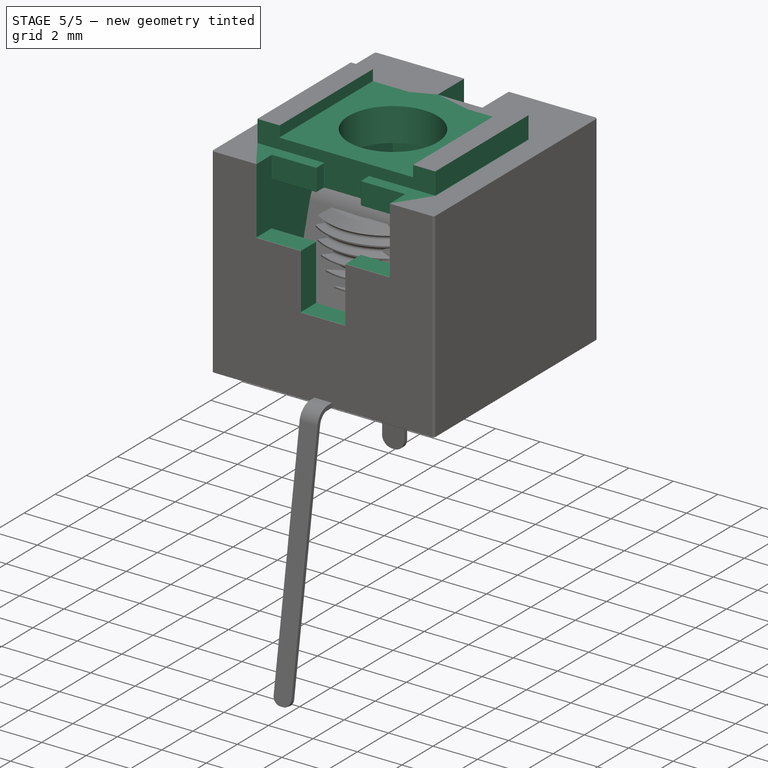
[diagram: stage 5 of 5 — iso view after this stage's code; geometry added in this stage tinted green]
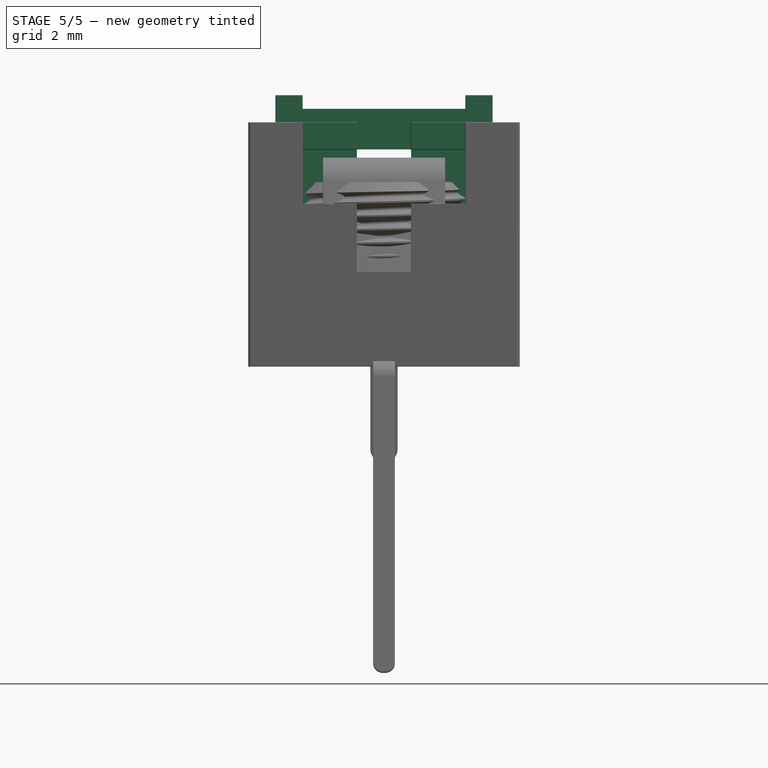
[diagram: stage 5 of 5 — front view after this stage's code; geometry added in this stage tinted green]
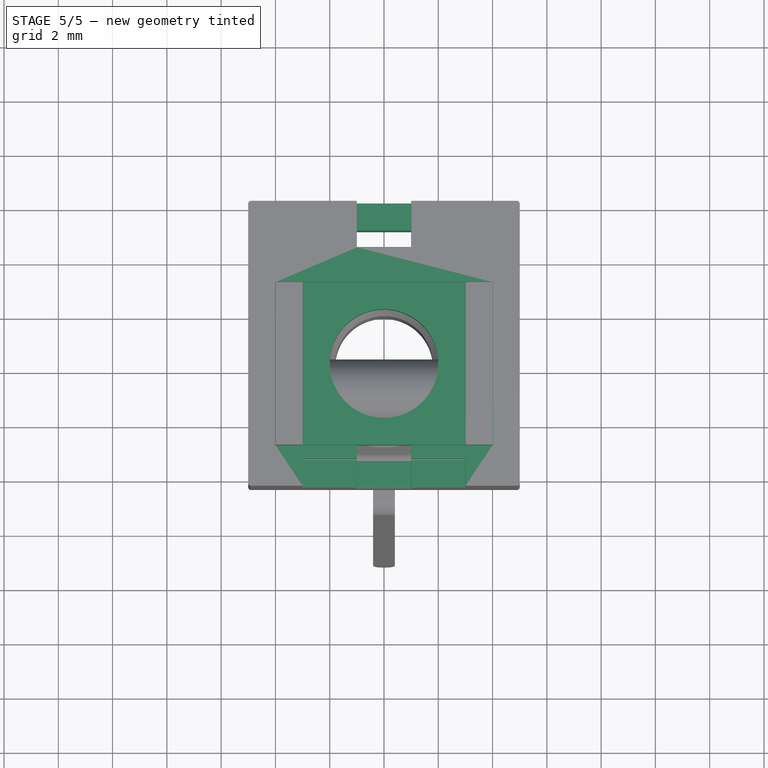
[diagram: stage 5 of 5 — top view after this stage's code; geometry added in this stage tinted green]
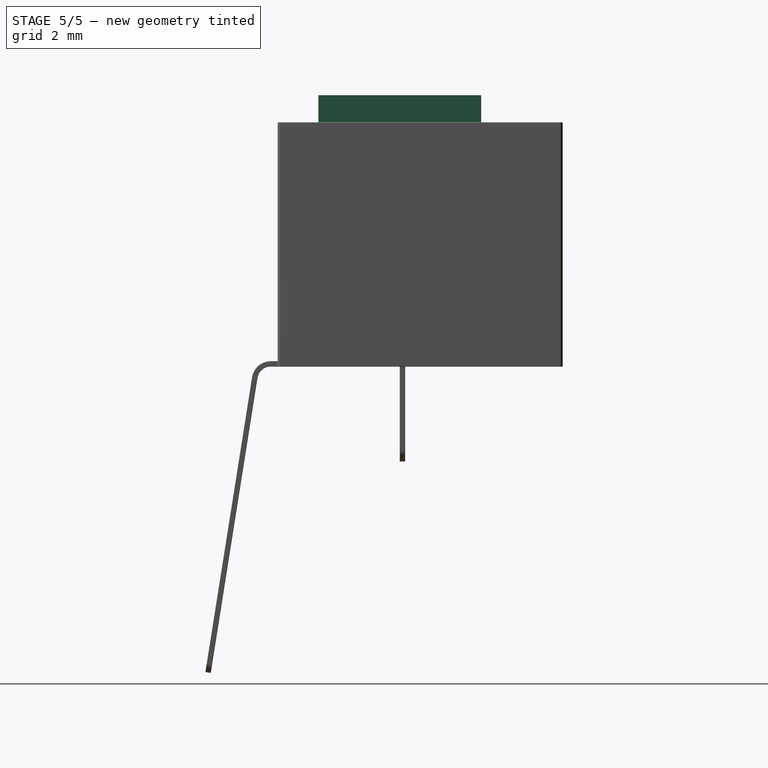
[diagram: stage 5 of 5 — right view after this stage's code; geometry added in this stage tinted green]
FEATURE [Sketcher::SketchObject] Sketch002
  FullyConstrained = true
  MapMode = 5
  Placement = pos=(0,0,10) rot=(0,0,1;0rad)
  Support = -> [Pad001]
  sketch-geometry (4):
    g0: LineSegment StartX=-3 StartY=3.9 StartZ=0 EndX=3 EndY=3.9 EndZ=0
    g1: LineSegment StartX=3 StartY=3.9 StartZ=0 EndX=3 EndY=-3.9 EndZ=0
    g2: LineSegment StartX=3 StartY=-3.9 StartZ=0 EndX=-3 EndY=-3.9 EndZ=0
    g3: LineSegment StartX=-3 StartY=-3.9 StartZ=0 EndX=-3 EndY=3.9 EndZ=0
  constraints (11):
    c: Coincident(g0,g1)
    c: Coincident(g1,g2)
    c: Coincident(g2,g3)
    c: Coincident(g3,g0)
    c: Horizontal(g0)
    c: Horizontal(g2)
    c: Vertical(g1)
    c: Vertical(g3)
    c: Symmetric(g0,g2,g-1)
    c: Distance(g0) = 6
    c: Distance(g1) = 7.8
FEATURE [PartDesign::Pocket] Pocket
  BaseFeature = -> Pad001
  Length = 0.5
  Length2 = 100
  Profile = -> Sketch002
  Type = 0
FEATURE [Sketcher::SketchObject] Sketch003
  FullyConstrained = true
  MapMode = 5
  Support = -> [XY_Plane001]
  expr: Constraints[9] = 1.5 / 2
  sketch-geometry (5):
    g0: LineSegment StartX=-3.5 StartY=5 StartZ=0 EndX=3.5 EndY=5 EndZ=0
    g1: LineSegment StartX=3.5 StartY=5 StartZ=0 EndX=3.5 EndY=-3.5 EndZ=0
    g2: LineSegment StartX=3.5 StartY=-3.5 StartZ=0 EndX=-3.5 EndY=-3.5 EndZ=0
    g3: LineSegment StartX=-3.5 StartY=-3.5 StartZ=0 EndX=-3.5 EndY=5 EndZ=0
    g4: GeomPoint X=-1e-16 Y=0.75 Z=0
  constraints (13):
    c: Coincident(g0,g1)
    c: Coincident(g1,g2)
    c: Coincident(g2,g3)
    c: Coincident(g3,g0)
    c: Horizontal(g0)
    c: Horizontal(g2)
    c: Vertical(g1)
    c: Vertical(g3)
    c: Vertical(g4,g-1)
    c: Distance(g4,g-1) = 0.75
    c: Symmetric(g0,g2,g4)
    c: Distance(g0) = 7
    c: Distance(g1) = 8.5
FEATURE [PartDesign::Pocket] Pocket001
  BaseFeature = -> Pocket
  Length = 8
  Length2 = 100
  Profile = -> Sketch003
  Reversed = true
  Type = 0
FEATURE [Sketcher::SketchObject] Sketch004
  FullyConstrained = true
  MapMode = 5
  Placement = pos=(0,-4.5,0) rot=(1,0,0;1.5708rad)
  Support = -> [Pocket001]
  sketch-geometry (13):
    g0: LineSegment StartX=-5 StartY=9 StartZ=0 EndX=5 EndY=9 EndZ=0
    g1: LineSegment StartX=5 StartY=9 StartZ=0 EndX=5 EndY=0 EndZ=0
    g2: LineSegment StartX=5 StartY=0 StartZ=0 EndX=-5 EndY=0 EndZ=0
    g3: LineSegment StartX=-5 StartY=0 StartZ=0 EndX=-5 EndY=9 EndZ=0
    g4: LineSegment StartX=0 StartY=0 StartZ=0 EndX=0 EndY=9 EndZ=0
    g5: LineSegment StartX=3 StartY=9 StartZ=0 EndX=-3 EndY=9 EndZ=0
    g6: LineSegment StartX=-3 StartY=9 StartZ=0 EndX=-3 EndY=6 EndZ=0
    g7: LineSegment StartX=-3 StartY=6 StartZ=0 EndX=-1 EndY=6 EndZ=0
    g8: LineSegment StartX=-1 StartY=6 StartZ=0 EndX=-1 EndY=3.5 EndZ=0
    g9: LineSegment StartX=-1 StartY=3.5 StartZ=0 EndX=1 EndY=3.5 EndZ=0
    g10: LineSegment StartX=1 StartY=3.5 StartZ=0 EndX=1 EndY=6 EndZ=0
    g11: LineSegment StartX=1 StartY=6 StartZ=0 EndX=3 EndY=6 EndZ=0
    g12: LineSegment StartX=3 StartY=6 StartZ=0 EndX=3 EndY=9 EndZ=0
  constraints (37):
    c: Coincident(g0,g1)
    c: Coincident(g1,g2)
    c: Coincident(g2,g3)
    c: Coincident(g3,g0)
    c: Horizontal(g0)
    c: Horizontal(g2)
    c: Vertical(g1)
    c: Vertical(g3)
    c: Symmetric(g1,g2,g-1)
    c: Distance(g1) = 9
    c: Distance(g0) = 10
    c: Coincident(g4,g-1)
    c: PointOnObject(g4,g0)
    c: Vertical(g4)
    c: Horizontal(g5)
    c: Coincident(g6,g5)
    c: Coincident(g7,g6)
    c: Coincident(g8,g7)
    c: Vertical(g8)
    c: Coincident(g9,g8)
    c: Coincident(g10,g9)
    c: Coincident(g11,g10)
    c: Coincident(g12,g11)
    c: Coincident(g12,g5)
    c: Vertical(g12)
    c: Equal(g11,g7)
    c: Equal(g8,g10)
    c: Equal(g6,g12)
    c: Horizontal(g9)
    c: Horizontal(g7)
    c: Horizontal(g11)
    c: Vertical(g6)
    c: Symmetric(g5,g5,g4)
    c: Distance(g5) = 6
    c: Distance(g9) = 2
    c: Distance(g8) = 2.5
    c: Distance(g6) = 3
FEATURE [PartDesign::Pocket] Pocket002
  BaseFeature = -> Pocket001
  Length = 1
  Length2 = 100
  Profile = -> Sketch004
  Type = 0
FEATURE [Sketcher::SketchObject] Sketch005
  FullyConstrained = true
  MapMode = 5
  Placement = pos=(0,-3.9,0) rot=(1,0,0;1.5708rad)
  Support = -> [Pocket002]
  sketch-geometry (9):
    g0: LineSegment StartX=-5 StartY=9 StartZ=0 EndX=5 EndY=9 EndZ=0
    g1: LineSegment StartX=5 StartY=9 StartZ=0 EndX=5 EndY=0 EndZ=0
    g2: LineSegment StartX=5 StartY=0 StartZ=0 EndX=-5 EndY=0 EndZ=0
    g3: LineSegment StartX=-5 StartY=0 StartZ=0 EndX=-5 EndY=9 EndZ=0
    g4: LineSegment StartX=0 StartY=0 StartZ=0 EndX=0 EndY=9 EndZ=0
    g5: LineSegment StartX=-1 StartY=9 StartZ=0 EndX=1 EndY=9 EndZ=0
    g6: LineSegment StartX=1 StartY=9 StartZ=0 EndX=1 EndY=8 EndZ=0
    g7: LineSegment StartX=1 StartY=8 StartZ=0 EndX=-1 EndY=8 EndZ=0
    g8: LineSegment StartX=-1 StartY=8 StartZ=0 EndX=-1 EndY=9 EndZ=0
  constraints (25):
    c: Coincident(g0,g1)
    c: Coincident(g1,g2)
    c: Coincident(g2,g3)
    c: Coincident(g3,g0)
    c: Horizontal(g0)
    c: Horizontal(g2)
    c: Vertical(g1)
    c: Vertical(g3)
    c: Distance(g0) = 10
    c: Distance(g1) = 9
    c: Symmetric(g1,g2,g-1)
    c: Coincident(g4,g-1)
    c: PointOnObject(g4,g0)
    c: Vertical(g4)
    c: Coincident(g5,g6)
    c: Coincident(g6,g7)
    c: Coincident(g7,g8)
    c: Coincident(g8,g5)
    c: Horizontal(g5)
    c: Horizontal(g7)
    c: Vertical(g6)
    c: Vertical(g8)
    c: Distance(g5) = 2
    c: Distance(g6) = 1
    c: Symmetric(g5,g5,g4)
FEATURE [PartDesign::Pocket] Pocket003
  BaseFeature = -> Pocket002
  Length = 0.5
  Length2 = 100
  Profile = -> Sketch005
  Type = 0
FEATURE [Sketcher::SketchObject] Sketch006
  FullyConstrained = true
  MapMode = 5
  Placement = pos=(0,6,0) rot=(0,0.707107,0.707107;3.14159rad)
  Support = -> [Pocket003]
  sketch-geometry (9):
    g0: LineSegment StartX=-5 StartY=9 StartZ=0 EndX=5 EndY=9 EndZ=0
    g1: LineSegment StartX=5 StartY=9 StartZ=0 EndX=5 EndY=0 EndZ=0
    g2: LineSegment StartX=5 StartY=0 StartZ=0 EndX=-5 EndY=0 EndZ=0
    g3: LineSegment StartX=-5 StartY=0 StartZ=0 EndX=-5 EndY=9 EndZ=0
    g4: LineSegment StartX=0 StartY=0 StartZ=0 EndX=0 EndY=9 EndZ=0
    g5: LineSegment StartX=-1 StartY=9 StartZ=0 EndX=1 EndY=9 EndZ=0
    g6: LineSegment StartX=1 StartY=9 StartZ=0 EndX=1 EndY=3.5 EndZ=0
    g7: LineSegment StartX=1 StartY=3.5 StartZ=0 EndX=-1 EndY=3.5 EndZ=0
    g8: LineSegment StartX=-1 StartY=3.5 StartZ=0 EndX=-1 EndY=9 EndZ=0
  constraints (25):
    c: Coincident(g0,g1)
    c: Coincident(g1,g2)
    c: Coincident(g2,g3)
    c: Coincident(g3,g0)
    c: Horizontal(g0)
    c: Horizontal(g2)
    c: Vertical(g1)
    c: Vertical(g3)
    c: Distance(g0) = 10
    c: Distance(g1) = 9
    c: Symmetric(g1,g2,g-1)
    c: Coincident(g4,g-1)
    c: PointOnObject(g4,g0)
    c: Vertical(g4)
    c: Coincident(g5,g6)
    c: Coincident(g6,g7)
    c: Coincident(g7,g8)
    c: Coincident(g8,g5)
    c: Horizontal(g5)
    c: Horizontal(g7)
    c: Vertical(g6)
    c: Vertical(g8)
    c: Distance(g5) = 2
    c: Distance(g6) = 5.5
    c: Symmetric(g5,g5,g4)
FEATURE [PartDesign::Pocket] Pocket004
  BaseFeature = -> Pocket003
  Length = 1.7
  Length2 = 100
  Profile = -> Sketch006
  Type = 0
FEATURE [Sketcher::SketchObject] Sketch007
  FullyConstrained = true
  MapMode = 5
  Placement = pos=(3,0,0) rot=(0.57735,-0.57735,-0.57735;2.0944rad)
  Support = -> [Pocket004]
  sketch-geometry (1):
    g0: Circle CenterX=0 CenterY=0 CenterZ=0 NormalX=0 NormalY=0 NormalZ=1 AngleXU=0 Radius=2
  constraints (2):
    c: Coincident(g0,g-1)
    c: Diameter(g0) = 4
FEATURE [PartDesign::Pocket] Pocket005
  BaseFeature = -> Pocket004
  Length = 2
  Length2 = 100
  Profile = -> Sketch007
  Refine = true
  Type = 0
FEATURE [PartDesign::Fillet] Fillet
  Base = -> Pocket005 [Edge2,Edge16,Edge44,Edge8]
  BaseFeature = -> Pocket005
  Radius = 0.1
  SupportTransform = false
FEATURE [PartDesign::Chamfer] Chamfer001
  Angle = 45
  Base = -> Fillet [Edge27,Edge25,Edge24,Edge26,Edge28,Edge29,Edge38,Edge40,Edge42,Edge43,Edge41,Edge39,Edge23,Edge5,Edge31,Edge33,Edge35,Edge4,Edge21,Edge7,Edge8,Edge6,Edge107,Edge84,Edge58,Edge60,Edge62,Edge63,Edge61,Edge59,Edge57,Edge88,Edge97,Edge87,Edge96,Edge99,Edge92,Edge93,Edge105,Edge103,+70 more]
  BaseFeature = -> Fillet
  ChamferType = 0
  FlipDirection = false
  Size = 0.01
  Size2 = 1
  SupportTransform = false
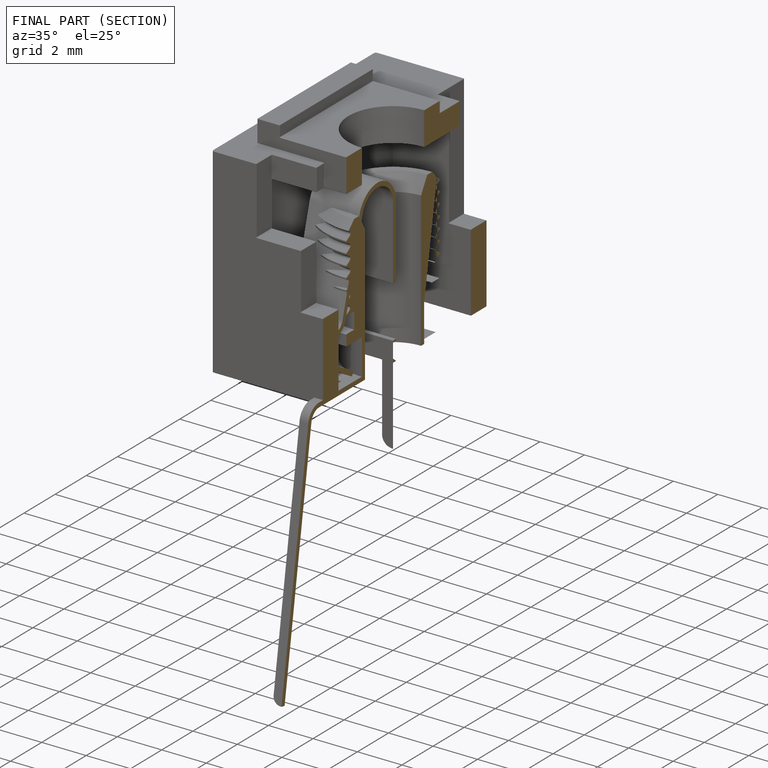
[diagram: finished part — half-section view (interior)]
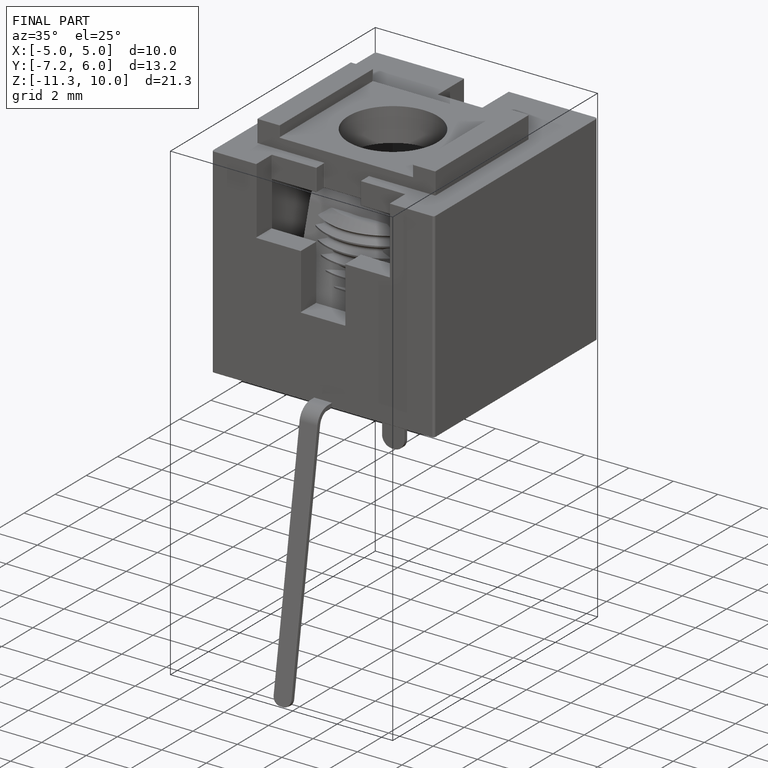
[diagram: finished part — iso view with bounding-box wireframe]
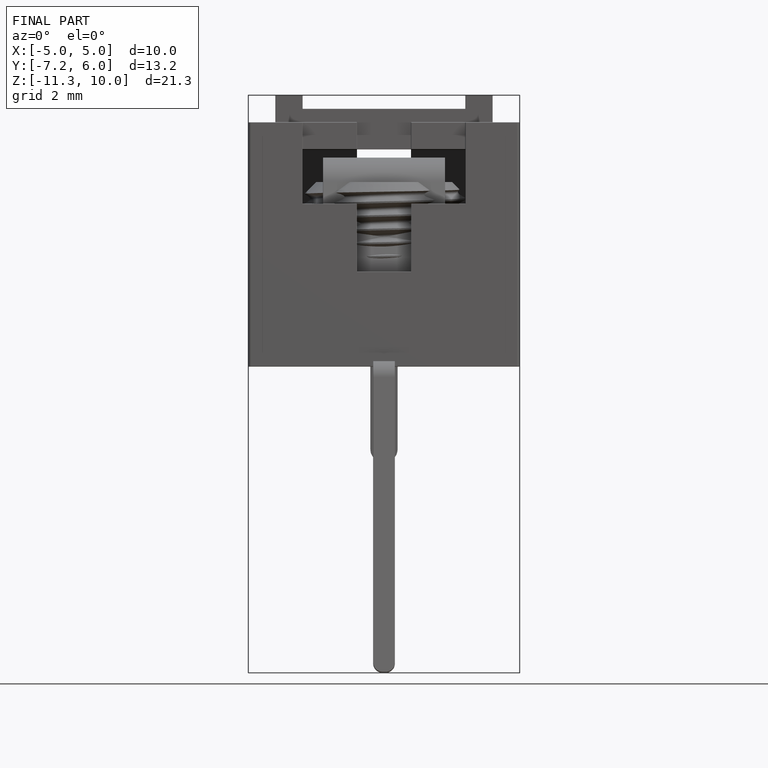
[diagram: finished part — front view with bounding-box wireframe]
